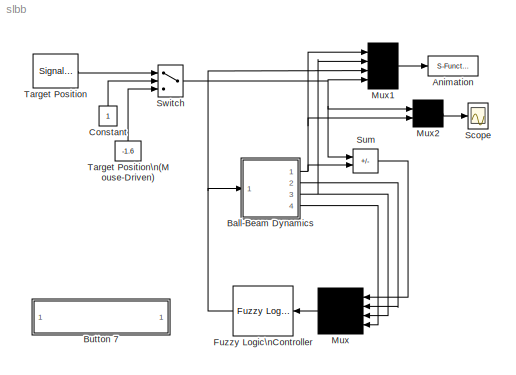
MODEL slbb
KIND model
CONFIG AbsTol = 1e-6
CONFIG FixedStep = 0.1
CONFIG MaxStep = 0.1
CONFIG MinStep = auto
CONFIG PreLoadFcn = initbb
CONFIG RelTol = 1e-3
CONFIG Solver = ode5
CONFIG SolverMode = SingleTasking
CONFIG StartTime = 0.0
CONFIG StopTime = 1000
BLOCK [S-Function] Animation
  FunctionName = animbb
  PortCounts = []
  Ports = [1]
  SFunctionModules = ''
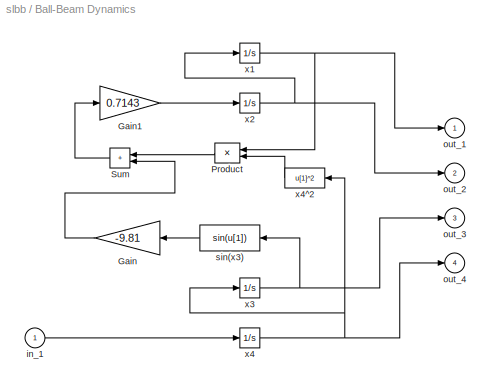
BLOCK [SubSystem] Ball-Beam Dynamics
  MaskDescription = Ball-Beam Dynamics
  MaskDisplay = plot(-4,-1,4,5,[0 -1 1 0 3 2.9 -3 -2.9 0],[2 0 0 2 3 3.1 1.1 1.0 2],0.3*cos(linspace(0,2*pi,9))+2,0.3*sin(linspace(0,2*pi,9))+3.1);
  MaskEnableString = on
  MaskHelp = Dynamics of the ball and beam system
  MaskIconFrame = on
  MaskIconOpaque = on
  MaskIconRotate = none
  MaskIconUnits = autoscale
  MaskInitialization = init_cond = @1;
  MaskPromptString = Initial Conditions:
  MaskStyleString = edit
  MaskToolTipString = on
  MaskTunableValueString = on
  MaskType = Ball-Beam Dynamics
  MaskValueString = [0 0 0 0]
  MaskVisibilityString = on
  Ports = [1, 4]
  RTWFcnNameOpts = Auto
  RTWFileNameOpts = Auto
  RTWSystemCode = Auto
  ShowPortLabels = off
  TreatAsAtomicUnit = off
BLOCK [Gain] Ball-Beam Dynamics/Gain
  Gain = -9.81
  MaskIconFrame = on
  MaskIconOpaque = on
  MaskIconRotate = none
  MaskIconUnits = autoscale
  Multiplication = Element-wise(K.*u)
  SaturateOnIntegerOverflow = on
BLOCK [Gain] Ball-Beam Dynamics/Gain1
  Gain = 0.7143
  Multiplication = Element-wise(K.*u)
  SaturateOnIntegerOverflow = on
BLOCK [Product] Ball-Beam Dynamics/Product
  Inputs = 2
  MaskIconFrame = on
  MaskIconOpaque = on
  MaskIconRotate = none
  MaskIconUnits = autoscale
  Multiplication = Element-wise(.*)
  Ports = [2, 1]
  SaturateOnIntegerOverflow = on
BLOCK [Sum] Ball-Beam Dynamics/Sum
  IconShape = rectangular
  Inputs = ++
  MaskIconFrame = on
  MaskIconOpaque = on
  MaskIconRotate = none
  MaskIconUnits = autoscale
  Ports = [2, 1]
  SaturateOnIntegerOverflow = on
BLOCK [Inport] Ball-Beam Dynamics/in_1
  Interpolate = on
  Port = 1
BLOCK [Outport] Ball-Beam Dynamics/out_1
  InitialOutput = 0
  OutputWhenDisabled = held
  Port = 1
BLOCK [Outport] Ball-Beam Dynamics/out_2
  InitialOutput = 0
  OutputWhenDisabled = held
  Port = 2
BLOCK [Outport] Ball-Beam Dynamics/out_3
  InitialOutput = 0
  OutputWhenDisabled = held
  Port = 3
BLOCK [Outport] Ball-Beam Dynamics/out_4
  InitialOutput = 0
  OutputWhenDisabled = held
  Port = 4
BLOCK [Fcn] Ball-Beam Dynamics/sin(x3)
  Expr = sin(u[1])
  MaskIconFrame = on
  MaskIconOpaque = on
  MaskIconRotate = none
  MaskIconUnits = autoscale
BLOCK [Integrator] Ball-Beam Dynamics/x1
  AbsoluteTolerance = auto
  ExternalReset = none
  InitialCondition = init_cond(1)
  InitialConditionSource = internal
  LimitOutput = off
  LowerSaturationLimit = -inf
  Ports = [1, 1]
  ShowSaturationPort = off
  ShowStatePort = off
  UpperSaturationLimit = inf
BLOCK [Integrator] Ball-Beam Dynamics/x2
  AbsoluteTolerance = auto
  ExternalReset = none
  InitialCondition = init_cond(2)
  InitialConditionSource = internal
  LimitOutput = off
  LowerSaturationLimit = -inf
  Ports = [1, 1]
  ShowSaturationPort = off
  ShowStatePort = off
  UpperSaturationLimit = inf
BLOCK [Integrator] Ball-Beam Dynamics/x3
  AbsoluteTolerance = auto
  ExternalReset = none
  InitialCondition = init_cond(3)
  InitialConditionSource = internal
  LimitOutput = off
  LowerSaturationLimit = -inf
  Ports = [1, 1]
  ShowSaturationPort = off
  ShowStatePort = off
  UpperSaturationLimit = inf
BLOCK [Integrator] Ball-Beam Dynamics/x4
  AbsoluteTolerance = auto
  ExternalReset = none
  InitialCondition = init_cond(4)
  InitialConditionSource = internal
  LimitOutput = off
  LowerSaturationLimit = -inf
  Ports = [1, 1]
  ShowSaturationPort = off
  ShowStatePort = off
  UpperSaturationLimit = inf
BLOCK [Fcn] Ball-Beam Dynamics/x4^2
  Expr = u[1]^2
  MaskIconFrame = on
  MaskIconOpaque = on
  MaskIconRotate = none
  MaskIconUnits = autoscale
BLOCK [SubSystem] Button 7
  MaskDisplay = disp('Variable Initialization')
  MaskIconFrame = on
  MaskIconOpaque = on
  MaskIconRotate = none
  MaskIconUnits = autoscale
  OpenFcn = initbb
  Ports = []
  RTWFcnNameOpts = Auto
  RTWFileNameOpts = Auto
  RTWSystemCode = Auto
  ShowPortLabels = off
  TreatAsAtomicUnit = off
BLOCK [Constant] Constant
  MaskIconFrame = on
  MaskIconOpaque = on
  MaskIconRotate = none
  MaskIconUnits = autoscale
  Value = 1
  VectorParams1D = on
BLOCK [Reference] Fuzzy Logic\nController  REF=fuzblock/Fuzzy Logic \nController  (lib defined in mdl_858b3b3e7478)
  Ports = [1, 1]
  SourceBlock = fuzblock/Fuzzy Logic \nController
  SourceType = FIS
  fis = fismatrix
BLOCK [Mux] Mux
  DisplayOption = none
  Inputs = 4
  MaskIconFrame = on
  MaskIconOpaque = on
  MaskIconRotate = none
  MaskIconUnits = autoscale
  Ports = [4, 1]
BLOCK [Mux] Mux1
  DisplayOption = none
  Inputs = 4
  Ports = [4, 1]
BLOCK [Mux] Mux2
  DisplayOption = none
  Inputs = 2
  Ports = [2, 1]
BLOCK [Scope] Scope
  DataFormat = Array
  Decimation = 1
  Floating = off
  Grid = on
  LimitDataPoints = on
  MaxDataPoints = 5000
  NumInputPorts = 1
  Ports = [1]
  SampleInput = off
  SampleTime = 0
  SaveName = ScopeData
  SaveToWorkspace = off
  TickLabels = on
  TimeRange = 10.000000
  YMax = 2
  YMin = -2
  ZoomMode = on
BLOCK [Sum] Sum
  IconShape = rectangular
  Inputs = -+
  Ports = [2, 1]
  SaturateOnIntegerOverflow = on
BLOCK [Switch] Switch
  Threshold = 0
BLOCK [SignalGenerator] Target Position
  Amplitude = 1.600000
  Frequency = 0.500000
  Units = rad/sec
  VectorParams1D = on
  WaveForm = square
BLOCK [Constant] Target Position\n(Mouse-Driven)
  MaskIconFrame = on
  MaskIconOpaque = on
  MaskIconRotate = none
  MaskIconUnits = autoscale
  Value = -1.6
  VectorParams1D = on
LINE Ball-Beam Dynamics/Gain1:1 -> Ball-Beam Dynamics/x2:1
LINE Ball-Beam Dynamics/Gain:1 -> Ball-Beam Dynamics/Sum:2
LINE Ball-Beam Dynamics/Product:1 -> Ball-Beam Dynamics/Sum:1
LINE Ball-Beam Dynamics/Sum:1 -> Ball-Beam Dynamics/Gain1:1
LINE Ball-Beam Dynamics/in_1:1 -> Ball-Beam Dynamics/x4:1
LINE Ball-Beam Dynamics/sin(x3):1 -> Ball-Beam Dynamics/Gain:1
NET Ball-Beam Dynamics/x1:1 -> Ball-Beam Dynamics/Product:1, Ball-Beam Dynamics/out_1:1
NET Ball-Beam Dynamics/x2:1 -> Ball-Beam Dynamics/out_2:1, Ball-Beam Dynamics/x1:1
NET Ball-Beam Dynamics/x3:1 -> Ball-Beam Dynamics/out_3:1, Ball-Beam Dynamics/sin(x3):1
NET Ball-Beam Dynamics/x4:1 -> Ball-Beam Dynamics/out_4:1, Ball-Beam Dynamics/x3:1, Ball-Beam Dynamics/x4^2:1
LINE Ball-Beam Dynamics/x4^2:1 -> Ball-Beam Dynamics/Product:2
NET Ball-Beam Dynamics:1 -> Mux1:1, Mux2:2, Sum:2
LINE Ball-Beam Dynamics:2 -> Mux:2
NET Ball-Beam Dynamics:3 -> Mux1:2, Mux:3
LINE Ball-Beam Dynamics:4 -> Mux:4
LINE Constant:1 -> Switch:2
NET Fuzzy Logic\nController:1 -> Ball-Beam Dynamics:1, Mux1:3
LINE Mux1:1 -> Animation:1
LINE Mux2:1 -> Scope:1
LINE Mux:1 -> Fuzzy Logic\nController:1
LINE Sum:1 -> Mux:1
NET Switch:1 -> Mux1:4, Mux2:1, Sum:1
LINE Target Position:1 -> Switch:1
LINE Target Position\n(Mouse-Driven):1 -> Switch:3
note: NET lines group one-source signal fan-out (src -> all destinations, sorted); 1:1 wires keep LINE
